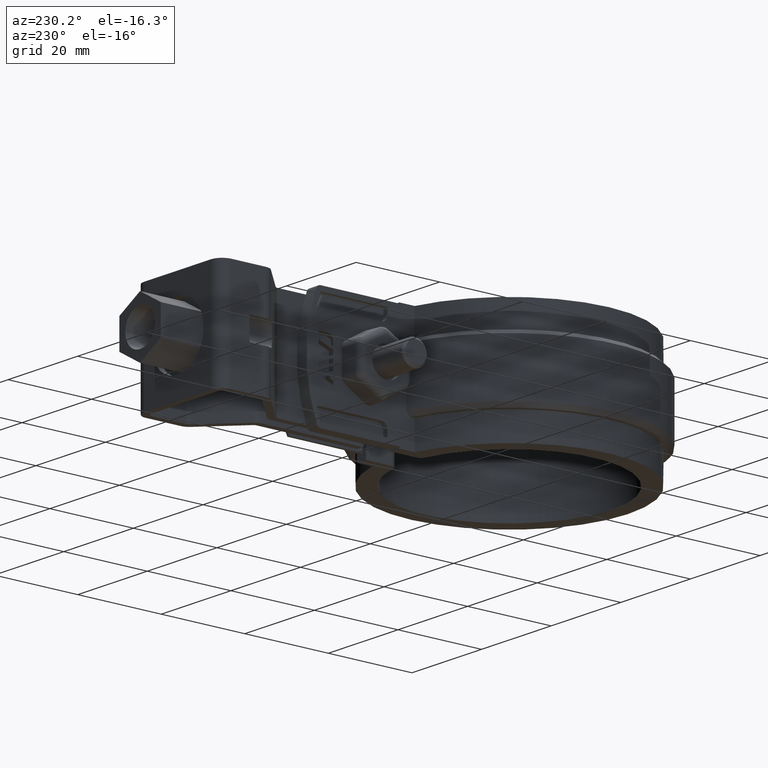
[diagram: clean part render]
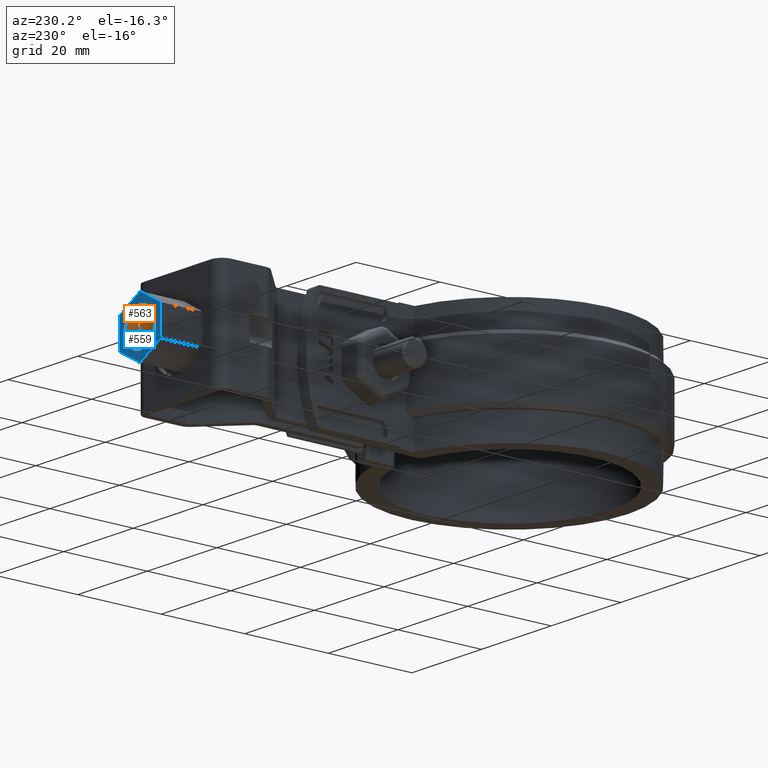
[diagram: same view with the hole feature highlighted: cylindrical wall and planar end face, labeled with their STEP entity ids]
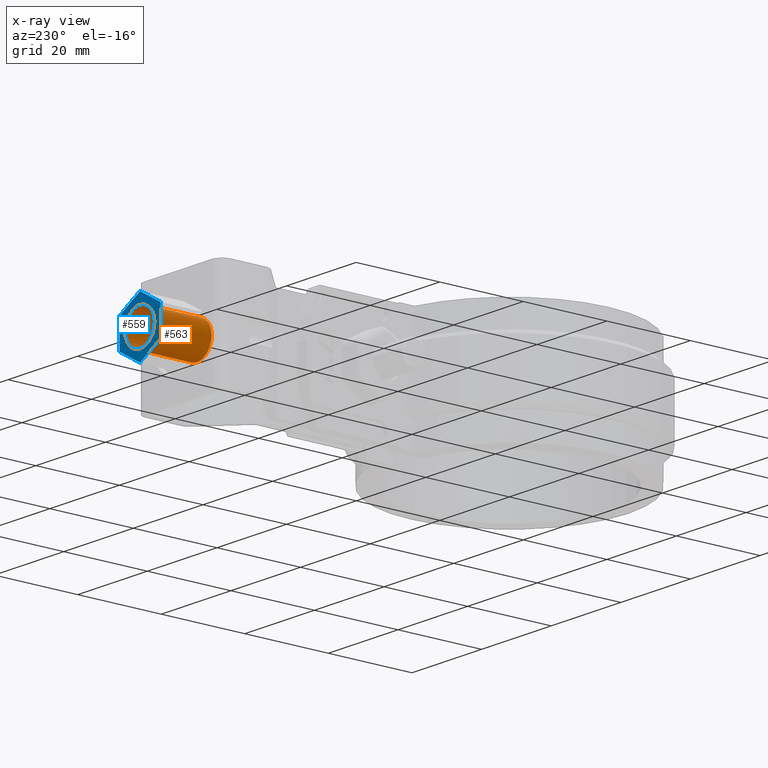
[diagram: x-ray of the same camera — body ghosted, the hole faces saturated]
A machine part, auxiliary view. The highlighted faces form one hole feature of diameter 8.5 mm: the cylindrical wall (entity #563, orange) and its adjacent planar end face (entity #559, blue) — they share a circular edge in the B-rep.
The next image is the same camera in x-ray (body ghosted, the hole faces saturated) — the bore reads through the body.
Wall:
#563 = ADVANCED_FACE( '', ( #1140, #1141 ), #1142, .F. );
#1140 = FACE_OUTER_BOUND( '', #2525, .T. );
#1141 = FACE_OUTER_BOUND( '', #2526, .T. );
#1142 = CYLINDRICAL_SURFACE( '', #2527, 4.25000000000000 );
#2525 = EDGE_LOOP( '', ( #6359 ) );
#2526 = EDGE_LOOP( '', ( #6360 ) );
#2527 = AXIS2_PLACEMENT_3D( '', #6361, #6362, #6363 );
#6359 = ORIENTED_EDGE( '', *, *, #8216, .F. );
#6360 = ORIENTED_EDGE( '', *, *, #8214, .F. );
#6361 = CARTESIAN_POINT( '', ( -6.46912913657294E-010, 70.5545271081202, -12.5000000671351 ) );
#6362 = DIRECTION( '', ( -3.46787463341351E-012, 1.00000000000000, -5.08856068393042E-010 ) );
#6363 = DIRECTION( '', ( 1.00000000000000, 3.46787463237677E-012, -2.03738722078960E-012 ) );
#8214 = EDGE_CURVE( '', #9597, #9597, #9598, .T. );
#8216 = EDGE_CURVE( '', #9600, #9600, #9601, .T. );
#9597 = VERTEX_POINT( '', #13855 );
#9598 = CIRCLE( '', #13856, 4.25000000000000 );
#9600 = VERTEX_POINT( '', #13859 );
#9601 = CIRCLE( '', #13860, 4.25000000000000 );
#13855 = CARTESIAN_POINT( '', ( 4.24999999929119, 88.4045271081671, -12.5000000762269 ) );
#13856 = AXIS2_PLACEMENT_3D( '', #15573, #15574, #15575 );
#13859 = CARTESIAN_POINT( '', ( 4.24999999933835, 74.8045271081671, -12.5000000693064 ) );
#13860 = AXIS2_PLACEMENT_3D( '', #15577, #15578, #15579 );
#15573 = CARTESIAN_POINT( '', ( -7.08814475863837E-010, 88.4045271081524, -12.5000000762182 ) );
#15574 = DIRECTION( '', ( 3.46787463341351E-012, -1.00000000000000, 5.08856068393042E-010 ) );
#15575 = DIRECTION( '', ( 1.00000000000000, 3.46787463237677E-012, -2.03738722078960E-012 ) );
#15577 = CARTESIAN_POINT( '', ( -6.61651380849413E-010, 74.8045271081524, -12.5000000692978 ) );
#15578 = DIRECTION( '', ( -3.46787463341351E-012, 1.00000000000000, -5.08856068393042E-010 ) );
#15579 = DIRECTION( '', ( 1.00000000000000, 3.46787463237660E-012, -2.03772028769699E-012 ) );
End face:
#559 = ADVANCED_FACE( '', ( #1130, #1131 ), #1132, .T. );
#1130 = FACE_OUTER_BOUND( '', #2515, .T. );
#1131 = FACE_BOUND( '', #2516, .T. );
#1132 = PLANE( '', #2517 );
#2515 = EDGE_LOOP( '', ( #6330, #6331, #6332, #6333, #6334, #6335 ) );
#2516 = EDGE_LOOP( '', ( #6336 ) );
#2517 = AXIS2_PLACEMENT_3D( '', #6337, #6338, #6339 );
#6330 = ORIENTED_EDGE( '', *, *, #8198, .T. );
#6331 = ORIENTED_EDGE( '', *, *, #8208, .T. );
#6332 = ORIENTED_EDGE( '', *, *, #8210, .T. );
#6333 = ORIENTED_EDGE( '', *, *, #8211, .T. );
#6334 = ORIENTED_EDGE( '', *, *, #8212, .T. );
#6335 = ORIENTED_EDGE( '', *, *, #8213, .T. );
#6336 = ORIENTED_EDGE( '', *, *, #8214, .T. );
#6337 = CARTESIAN_POINT( '', ( 5.94999999928419, 88.4045271064249, -15.9352341779086 ) );
#6338 = DIRECTION( '', ( -3.46787463341349E-012, 1.00000000000000, -5.08856068393042E-010 ) );
#6339 = DIRECTION( '', ( -0.999976778421469, 4.03896783473158E-028, 0.00681488208412564 ) );
#8198 = EDGE_CURVE( '', #9570, #9568, #9571, .T. );
#8208 = EDGE_CURVE( '', #9568, #9586, #9588, .T. );
#8210 = EDGE_CURVE( '', #9586, #9589, #9591, .T. );
#8211 = EDGE_CURVE( '', #9589, #9592, #9593, .T. );
#8212 = EDGE_CURVE( '', #9592, #9594, #9595, .T. );
#8213 = EDGE_CURVE( '', #9594, #9570, #9596, .T. );
#8214 = EDGE_CURVE( '', #9597, #9597, #9598, .T. );
#9568 = VERTEX_POINT( '', #13811 );
#9570 = VERTEX_POINT( '', #13814 );
#9571 = LINE( '', #13815, #13816 );
#9586 = VERTEX_POINT( '', #13837 );
#9588 = LINE( '', #13840, #13841 );
#9589 = VERTEX_POINT( '', #13842 );
#9591 = LINE( '', #13845, #13846 );
#9592 = VERTEX_POINT( '', #13847 );
#9593 = LINE( '', #13848, #13849 );
#9594 = VERTEX_POINT( '', #13850 );
#9595 = LINE( '', #13851, #13852 );
#9596 = LINE( '', #13853, #13854 );
#9597 = VERTEX_POINT( '', #13855 );
#9598 = CIRCLE( '', #13856, 4.25000000000000 );
#13811 = CARTESIAN_POINT( '', ( 5.94999999928419, 88.4045271064249, -15.9352341779086 ) );
#13814 = CARTESIAN_POINT( '', ( 5.94999999929819, 88.4045271099210, -9.06476597455205 ) );
#13815 = CARTESIAN_POINT( '', ( 5.94999999929818, 88.4045271099210, -9.06476597455205 ) );
#13816 = VECTOR( '', #15553, 1000.00000000000 );
#13837 = CARTESIAN_POINT( '', ( -7.22811532529587E-010, 88.4045271046563, -19.3704682795748 ) );
#13840 = CARTESIAN_POINT( '', ( 5.94999999928419, 88.4045271064249, -15.9352341779086 ) );
#13841 = VECTOR( '', #15567, 1000.00000000000 );
#13842 = CARTESIAN_POINT( '', ( -5.95000000071581, 88.4045271063837, -15.9352341778844 ) );
#13845 = CARTESIAN_POINT( '', ( -7.22809797806111E-010, 88.4045271046563, -19.3704682795748 ) );
#13846 = VECTOR( '', #15569, 1000.00000000000 );
#13847 = CARTESIAN_POINT( '', ( -5.95000000070181, 88.4045271098798, -9.06476597452782 ) );
#13848 = CARTESIAN_POINT( '', ( -5.95000000071581, 88.4045271063837, -15.9352341778844 ) );
#13849 = VECTOR( '', #15570, 1000.00000000000 );
#13850 = CARTESIAN_POINT( '', ( -6.94818286559825E-010, 88.4045271116484, -5.62953187286165 ) );
#13851 = CARTESIAN_POINT( '', ( -5.95000000070182, 88.4045271098798, -9.06476597452781 ) );
#13852 = VECTOR( '', #15571, 1000.00000000000 );
#13853 = CARTESIAN_POINT( '', ( -6.94812215027659E-010, 88.4045271116484, -5.62953187286165 ) );
#13854 = VECTOR( '', #15572, 1000.00000000000 );
#13855 = CARTESIAN_POINT( '', ( 4.24999999929119, 88.4045271081671, -12.5000000762269 ) );
#13856 = AXIS2_PLACEMENT_3D( '', #15573, #15574, #15575 );
#15553 = DIRECTION( '', ( -2.03733170787372E-012, -5.08856068393049E-010, -1.00000000000000 ) );
#15567 = DIRECTION( '', ( -0.866025403785458, -2.57431301725302E-010, -0.499999999998235 ) );
#15569 = DIRECTION( '', ( -0.866025403783420, 2.51424766667747E-010, 0.500000000001765 ) );
#15570 = DIRECTION( '', ( 2.03777579708357E-012, 5.08856068393049E-010, 1.00000000000000 ) );
#15571 = DIRECTION( '', ( 0.866025403785457, 2.57431301725302E-010, 0.499999999998235 ) );
#15572 = DIRECTION( '', ( 0.866025403783420, -2.51424766667747E-010, -0.500000000001765 ) );
#15573 = CARTESIAN_POINT( '', ( -7.08814475863837E-010, 88.4045271081524, -12.5000000762182 ) );
#15574 = DIRECTION( '', ( 3.46787463341351E-012, -1.00000000000000, 5.08856068393042E-010 ) );
#15575 = DIRECTION( '', ( 1.00000000000000, 3.46787463237677E-012, -2.03738722078960E-012 ) );